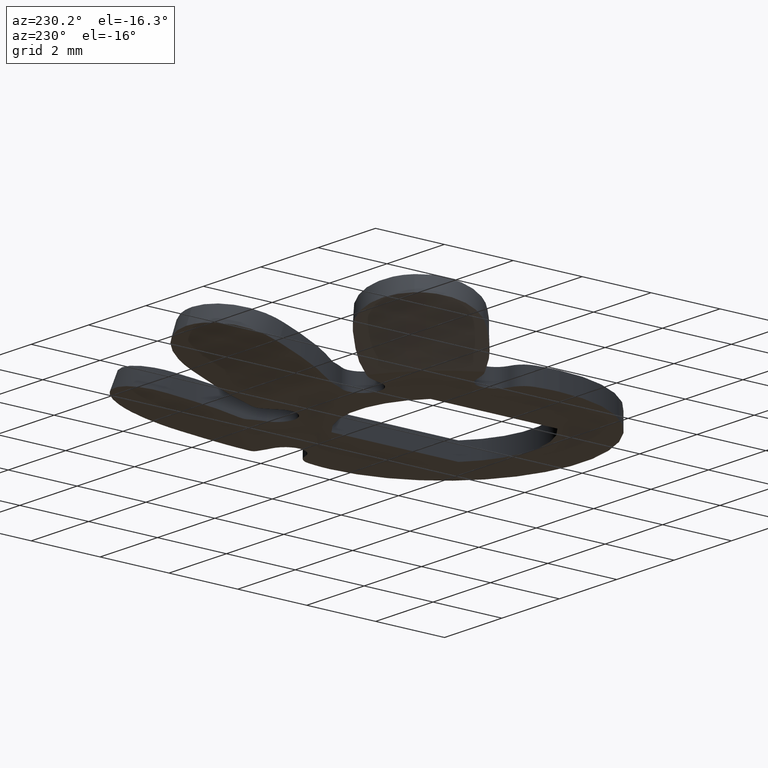
[diagram: clean part render]
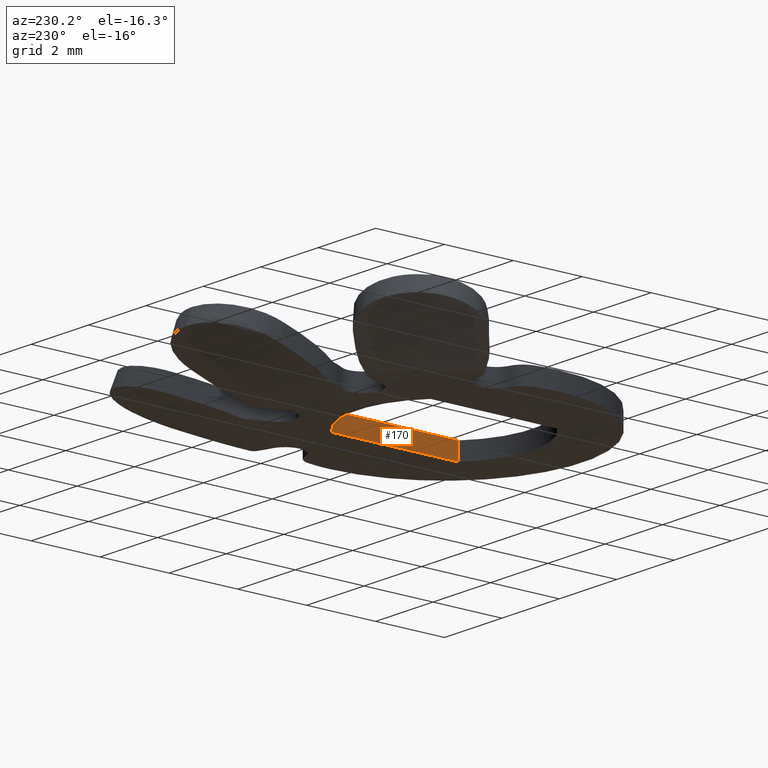
[diagram: same view with one face highlighted and labeled with its STEP entity id]
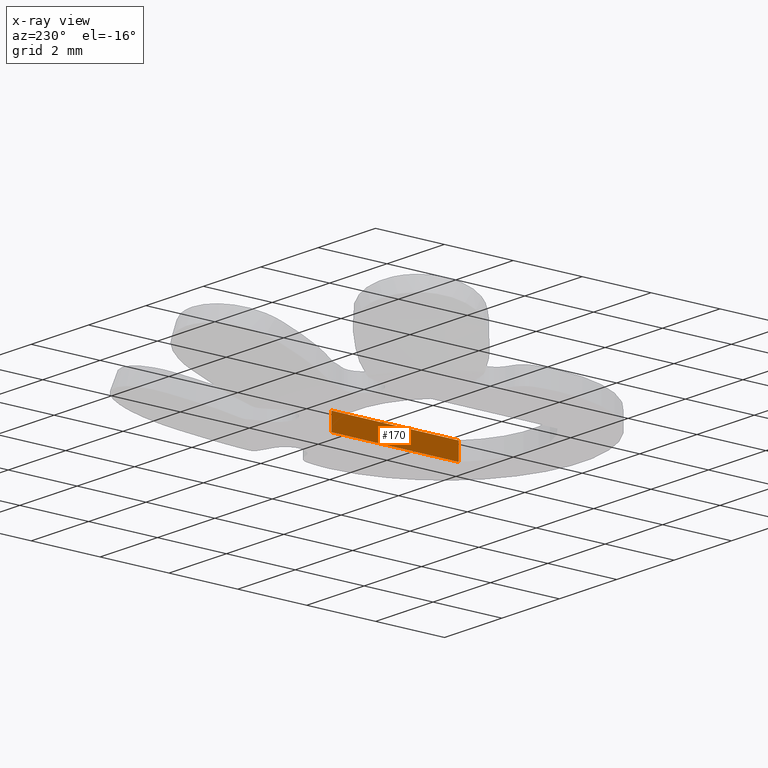
[diagram: x-ray of the same camera — body ghosted, the highlighted face saturated]
A machine part, auxiliary view. The second image highlights one B-rep face of the part: STEP entity #170.
The next image is the same camera in x-ray: the body ghosted, the highlighted face saturated — about 1% of this face is hidden behind the body in this view.
In plain terms, the highlighted planar face has unit normal (-1, 0, 0).
Its self-contained STEP definition (entity closure, byte-faithful):
#2 = ORIENTED_EDGE ( 'NONE', *, *, #1371, .T. ) ;
#12 = PLANE ( 'NONE',  #1604 ) ;
#64 = DIRECTION ( 'NONE',  ( 0.0000000000000000000, 1.000000000000000000, 0.0000000000000000000 ) ) ;
#72 = CARTESIAN_POINT ( 'NONE',  ( 1.725000000000000300, -1.843908891458576800, 1.500000000000000000 ) ) ;
#104 = LINE ( 'NONE', #72, #1455 ) ;
#170 = ADVANCED_FACE ( 'NONE', ( #619 ), #12, .T. ) ;
#182 = LINE ( 'NONE', #1525, #307 ) ;
#213 = VECTOR ( 'NONE', #223, 1000.000000000000000 ) ;
#223 = DIRECTION ( 'NONE',  ( 0.0000000000000000000, 1.000000000000000000, 0.0000000000000000000 ) ) ;
#284 = DIRECTION ( 'NONE',  ( 0.0000000000000000000, 0.0000000000000000000, 1.000000000000000000 ) ) ;
#301 = CARTESIAN_POINT ( 'NONE',  ( 1.725000000000000100, 4.500000000000000900, 0.5000000000000002200 ) ) ;
#307 = VECTOR ( 'NONE', #64, 1000.000000000000000 ) ;
#351 = EDGE_CURVE ( 'NONE', #1153, #1129, #104, .T. ) ;
#411 = CARTESIAN_POINT ( 'NONE',  ( 1.724999999999999900, 1.843908891458577100, 0.0000000000000000000 ) ) ;
#516 = ORIENTED_EDGE ( 'NONE', *, *, #1042, .F. ) ;
#619 = FACE_OUTER_BOUND ( 'NONE', #1442, .T. ) ;
#620 = EDGE_CURVE ( 'NONE', #1153, #1304, #1283, .T. ) ;
#777 = CARTESIAN_POINT ( 'NONE',  ( 1.725000000000000300, -1.843908891458576800, 0.0000000000000000000 ) ) ;
#790 = LINE ( 'NONE', #1088, #1589 ) ;
#835 = CARTESIAN_POINT ( 'NONE',  ( 1.724999999999999900, 1.843908891458577100, 0.5000000000000002200 ) ) ;
#866 = CARTESIAN_POINT ( 'NONE',  ( 1.725000000000000300, -1.843908891458576800, 0.5000000000000002200 ) ) ;
#907 = VERTEX_POINT ( 'NONE', #411 ) ;
#1033 = ORIENTED_EDGE ( 'NONE', *, *, #351, .F. ) ;
#1042 = EDGE_CURVE ( 'NONE', #1129, #907, #182, .T. ) ;
#1071 = ORIENTED_EDGE ( 'NONE', *, *, #620, .T. ) ;
#1088 = CARTESIAN_POINT ( 'NONE',  ( 1.724999999999999900, 1.843908891458577100, 1.500000000000000000 ) ) ;
#1100 = DIRECTION ( 'NONE',  ( -1.000000000000000000, 0.0000000000000000000, 0.0000000000000000000 ) ) ;
#1119 = DIRECTION ( 'NONE',  ( 0.0000000000000000000, 0.0000000000000000000, -1.000000000000000000 ) ) ;
#1129 = VERTEX_POINT ( 'NONE', #777 ) ;
#1153 = VERTEX_POINT ( 'NONE', #866 ) ;
#1283 = LINE ( 'NONE', #301, #213 ) ;
#1304 = VERTEX_POINT ( 'NONE', #835 ) ;
#1353 = CARTESIAN_POINT ( 'NONE',  ( 1.725000000000000100, -1.843908891458577300, 1.500000000000000000 ) ) ;
#1371 = EDGE_CURVE ( 'NONE', #1304, #907, #790, .T. ) ;
#1442 = EDGE_LOOP ( 'NONE', ( #1071, #2, #516, #1033 ) ) ;
#1455 = VECTOR ( 'NONE', #1674, 1000.000000000000000 ) ;
#1525 = CARTESIAN_POINT ( 'NONE',  ( 1.725000000000000100, -1.843908891458577300, 0.0000000000000000000 ) ) ;
#1589 = VECTOR ( 'NONE', #1119, 1000.000000000000000 ) ;
#1604 = AXIS2_PLACEMENT_3D ( 'NONE', #1353, #1100, #284 ) ;
#1674 = DIRECTION ( 'NONE',  ( 0.0000000000000000000, 0.0000000000000000000, -1.000000000000000000 ) ) ;